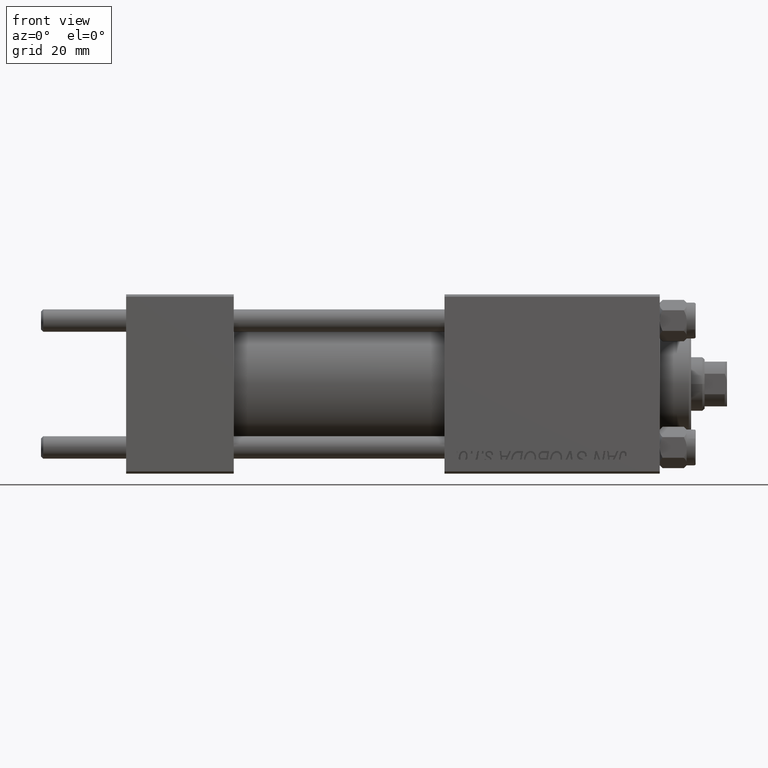
[diagram: clean part render]
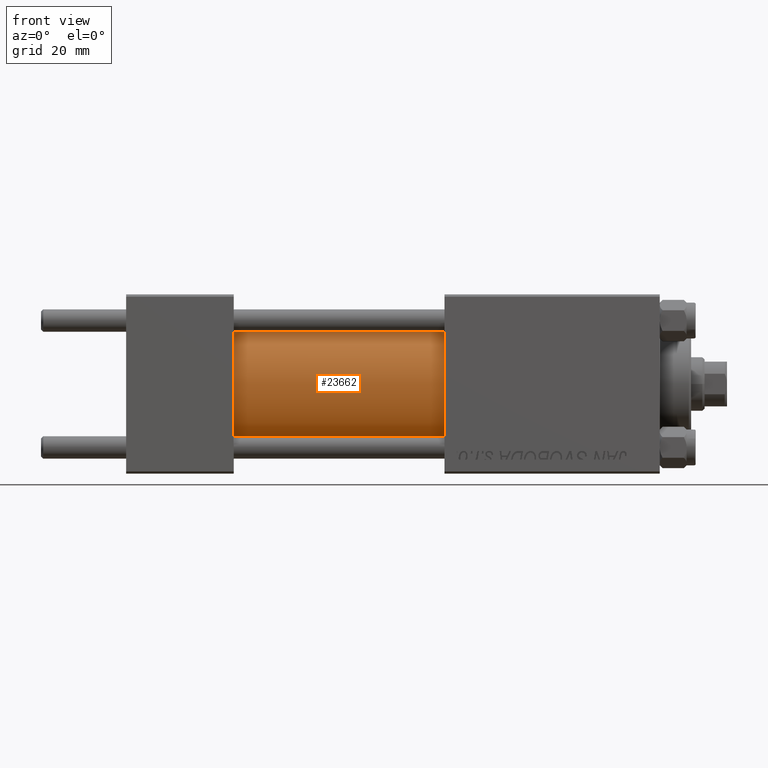
[diagram: same view with one face highlighted and labeled with its STEP entity id]
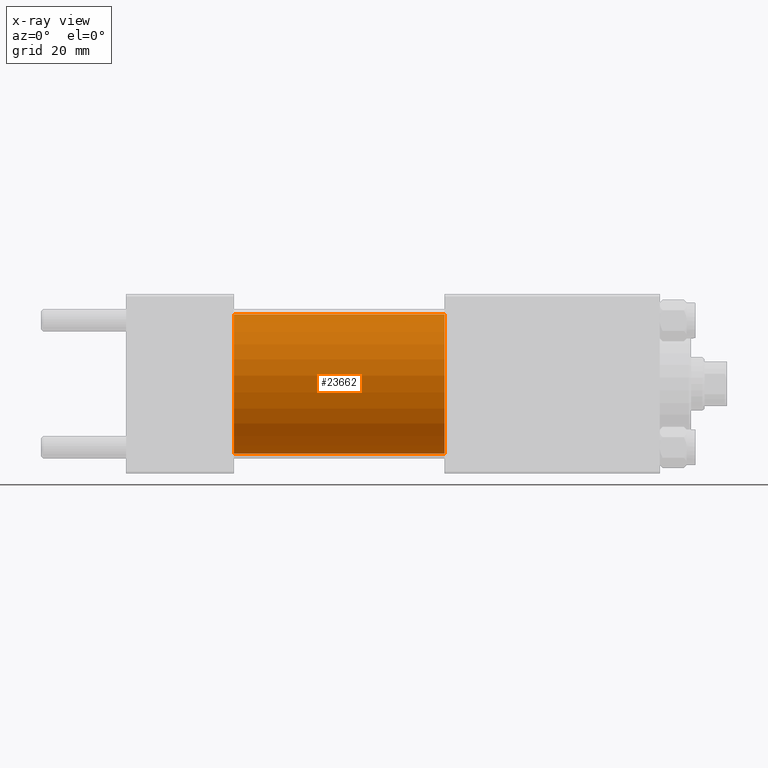
[diagram: x-ray of the same camera — body ghosted, the highlighted face saturated]
A machine part, front view. The second image highlights one B-rep face of the part: STEP entity #23662.
The next image is the same camera in x-ray: the body ghosted, the highlighted face saturated — about 0% of this face is hidden behind the body in this view.
In plain terms, the highlighted cylindrical surface (partial cylindrical patch) has radius 15.5 mm, axis along (-1, -0, -0).
Its self-contained STEP definition (entity closure, byte-faithful):
#592 = VERTEX_POINT ( 'NONE', #14333 ) ;
#5952 = DIRECTION ( 'NONE',  ( 0.000000000000000000, 0.000000000000000000, 1.000000000000000000 ) ) ;
#6058 = CARTESIAN_POINT ( 'NONE',  ( 24.00000000000000000, 0.000000000000000000, 0.000000000000000000 ) ) ;
#6305 = DIRECTION ( 'NONE',  ( 0.000000000000000000, 0.000000000000000000, 1.000000000000000000 ) ) ;
#7079 = EDGE_CURVE ( 'NONE', #592, #41260, #37062, .T. ) ;
#8644 = CIRCLE ( 'NONE', #45612, 15.50000000000000000 ) ;
#11426 = CARTESIAN_POINT ( 'NONE',  ( 71.00000000000001421, 0.000000000000000000, 15.50000000000000000 ) ) ;
#12108 = EDGE_LOOP ( 'NONE', ( #25916, #23697, #46220, #30365 ) ) ;
#12254 = DIRECTION ( 'NONE',  ( -1.000000000000000000, -0.000000000000000000, -0.000000000000000000 ) ) ;
#12943 = DIRECTION ( 'NONE',  ( 1.000000000000000000, 0.000000000000000000, 0.000000000000000000 ) ) ;
#13497 = CIRCLE ( 'NONE', #14271, 15.50000000000000000 ) ;
#14271 = AXIS2_PLACEMENT_3D ( 'NONE', #20241, #12943, #39876 ) ;
#14333 = CARTESIAN_POINT ( 'NONE',  ( 71.00000000000001421, 1.898202538678397557E-15, -15.50000000000000000 ) ) ;
#14660 = CARTESIAN_POINT ( 'NONE',  ( 71.00000000000001421, 0.000000000000000000, 0.000000000000000000 ) ) ;
#15106 = EDGE_CURVE ( 'NONE', #31381, #592, #13497, .T. ) ;
#17783 = CYLINDRICAL_SURFACE ( 'NONE', #44549, 15.50000000000000000 ) ;
#20241 = CARTESIAN_POINT ( 'NONE',  ( 71.00000000000001421, 0.000000000000000000, 0.000000000000000000 ) ) ;
#21658 = VECTOR ( 'NONE', #12254, 1000.000000000000000 ) ;
#23662 = ADVANCED_FACE ( 'NONE', ( #34044 ), #17783, .T. ) ;
#23697 = ORIENTED_EDGE ( 'NONE', *, *, #15106, .F. ) ;
#25494 = CARTESIAN_POINT ( 'NONE',  ( 71.00000000000001421, 1.898202538678397557E-15, -15.50000000000000000 ) ) ;
#25916 = ORIENTED_EDGE ( 'NONE', *, *, #7079, .F. ) ;
#27868 = CARTESIAN_POINT ( 'NONE',  ( 71.00000000000001421, 0.000000000000000000, 15.50000000000000000 ) ) ;
#29520 = VERTEX_POINT ( 'NONE', #39040 ) ;
#30365 = ORIENTED_EDGE ( 'NONE', *, *, #34037, .T. ) ;
#31381 = VERTEX_POINT ( 'NONE', #11426 ) ;
#32396 = DIRECTION ( 'NONE',  ( -1.000000000000000000, -0.000000000000000000, -0.000000000000000000 ) ) ;
#34037 = EDGE_CURVE ( 'NONE', #29520, #41260, #8644, .T. ) ;
#34044 = FACE_OUTER_BOUND ( 'NONE', #12108, .T. ) ;
#37062 = LINE ( 'NONE', #25494, #41321 ) ;
#39040 = CARTESIAN_POINT ( 'NONE',  ( 24.00000000000000000, 0.000000000000000000, 15.50000000000000000 ) ) ;
#39876 = DIRECTION ( 'NONE',  ( 0.000000000000000000, 0.000000000000000000, -1.000000000000000000 ) ) ;
#39954 = LINE ( 'NONE', #27868, #21658 ) ;
#41086 = CARTESIAN_POINT ( 'NONE',  ( 24.00000000000000000, 1.898202538678397557E-15, -15.50000000000000000 ) ) ;
#41260 = VERTEX_POINT ( 'NONE', #41086 ) ;
#41321 = VECTOR ( 'NONE', #48400, 1000.000000000000000 ) ;
#42902 = EDGE_CURVE ( 'NONE', #31381, #29520, #39954, .T. ) ;
#44549 = AXIS2_PLACEMENT_3D ( 'NONE', #14660, #32396, #5952 ) ;
#45612 = AXIS2_PLACEMENT_3D ( 'NONE', #6058, #48349, #6305 ) ;
#46220 = ORIENTED_EDGE ( 'NONE', *, *, #42902, .T. ) ;
#48349 = DIRECTION ( 'NONE',  ( 1.000000000000000000, 0.000000000000000000, 0.000000000000000000 ) ) ;
#48400 = DIRECTION ( 'NONE',  ( -1.000000000000000000, -0.000000000000000000, -0.000000000000000000 ) ) ;